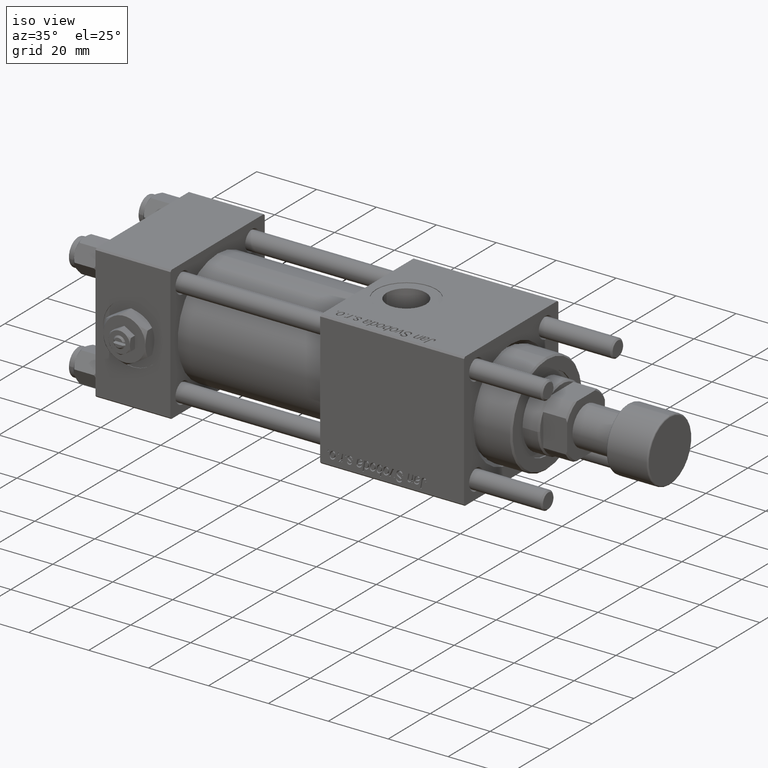
[diagram: clean part render]
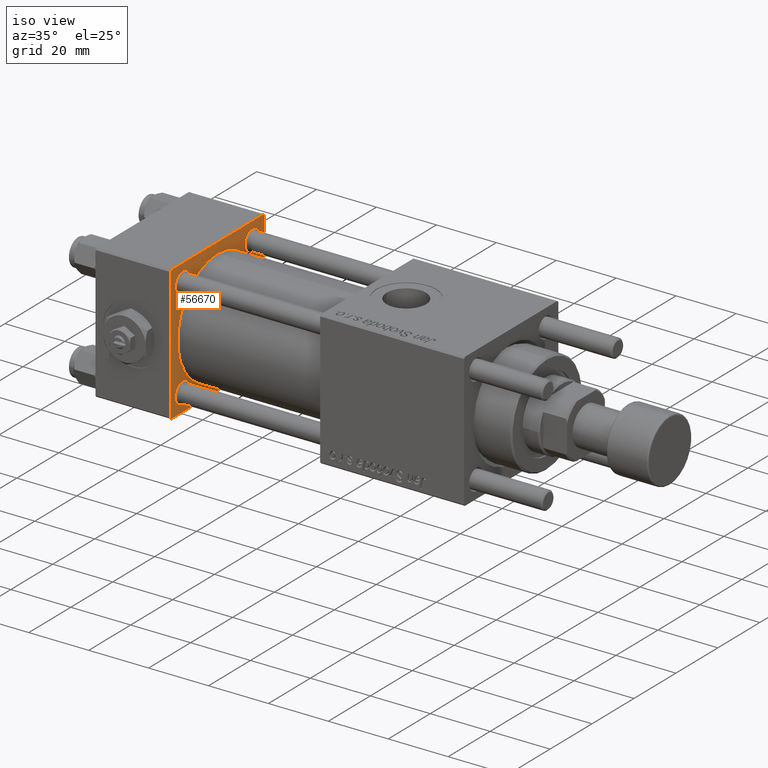
[diagram: same view with one face highlighted and labeled with its STEP entity id]
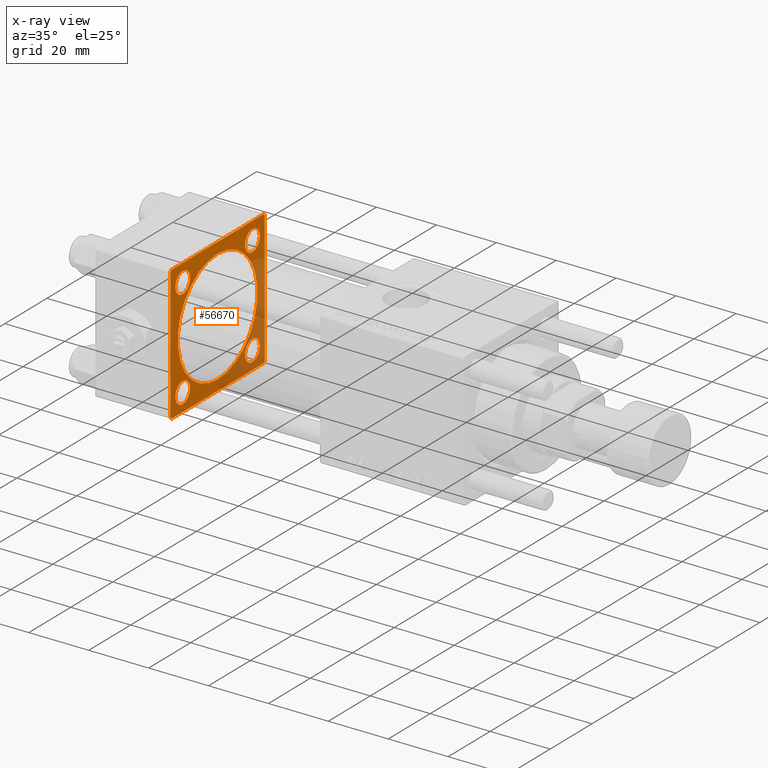
[diagram: x-ray of the same camera — body ghosted, the highlighted face saturated]
A machine part, iso view. The second image highlights one B-rep face of the part: STEP entity #56670.
The next image is the same camera in x-ray: the body ghosted, the highlighted face saturated — about 31% of this face is hidden behind the body in this view.
In plain terms, the highlighted planar face has unit normal (-1, 0, 0).
Its self-contained STEP definition (entity closure, byte-faithful):
#260 = CARTESIAN_POINT ( 'NONE',  ( 25.00000000000000000, 22.50000000000000000, 22.50000000000000355 ) ) ;
#271 = VECTOR ( 'NONE', #30502, 1000.000000000000000 ) ;
#599 = CIRCLE ( 'NONE', #41685, 3.499999999999989342 ) ;
#1056 = VECTOR ( 'NONE', #4162, 1000.000000000000000 ) ;
#1460 = AXIS2_PLACEMENT_3D ( 'NONE', #39047, #11819, #29504 ) ;
#1548 = AXIS2_PLACEMENT_3D ( 'NONE', #38645, #34169, #19233 ) ;
#1651 = DIRECTION ( 'NONE',  ( 0.000000000000000000, 0.000000000000000000, 1.000000000000000000 ) ) ;
#1834 = VERTEX_POINT ( 'NONE', #17742 ) ;
#2486 = CARTESIAN_POINT ( 'NONE',  ( 25.00000000000000000, 22.50000000000000000, 22.50000000000000355 ) ) ;
#2618 = DIRECTION ( 'NONE',  ( 0.000000000000000000, 0.000000000000000000, 1.000000000000000000 ) ) ;
#2651 = AXIS2_PLACEMENT_3D ( 'NONE', #58327, #49655, #35603 ) ;
#3244 = LINE ( 'NONE', #49320, #271 ) ;
#3564 = DIRECTION ( 'NONE',  ( 0.000000000000000000, 0.000000000000000000, -1.000000000000000000 ) ) ;
#4162 = DIRECTION ( 'NONE',  ( 0.000000000000000000, 0.7071067811865426878, -0.7071067811865524577 ) ) ;
#4179 = VERTEX_POINT ( 'NONE', #11169 ) ;
#5001 = DIRECTION ( 'NONE',  ( 0.000000000000000000, -0.7071067811865474617, 0.7071067811865474617 ) ) ;
#5053 = EDGE_LOOP ( 'NONE', ( #16176, #49427 ) ) ;
#5194 = PLANE ( 'NONE',  #30340 ) ;
#5451 = ORIENTED_EDGE ( 'NONE', *, *, #5685, .T. ) ;
#5685 = EDGE_CURVE ( 'NONE', #18250, #52885, #37649, .T. ) ;
#5952 = DIRECTION ( 'NONE',  ( 0.000000000000000000, -1.000000000000000000, -7.709882115452476934E-17 ) ) ;
#9017 = CARTESIAN_POINT ( 'NONE',  ( 25.00000000000000000, 22.50000000000000000, -21.99999999999998224 ) ) ;
#9364 = CIRCLE ( 'NONE', #2651, 3.500000000000003109 ) ;
#10172 = CIRCLE ( 'NONE', #13957, 3.499999999999992895 ) ;
#10828 = EDGE_LOOP ( 'NONE', ( #57590, #41473 ) ) ;
#11169 = CARTESIAN_POINT ( 'NONE',  ( 25.00000000000000000, 16.59999999999999787, -13.10000000000000142 ) ) ;
#11778 = LINE ( 'NONE', #2486, #35198 ) ;
#11819 = DIRECTION ( 'NONE',  ( 1.000000000000000000, -0.000000000000000000, 0.000000000000000000 ) ) ;
#13052 = CARTESIAN_POINT ( 'NONE',  ( 25.00000000000000000, -16.59999999999999076, -16.60000000000000853 ) ) ;
#13174 = CARTESIAN_POINT ( 'NONE',  ( 25.00000000000000000, -2.602085213965210642E-15, 19.00000000000000000 ) ) ;
#13351 = CARTESIAN_POINT ( 'NONE',  ( 25.00000000000000000, -22.50000000000000000, 22.00000000000000000 ) ) ;
#13957 = AXIS2_PLACEMENT_3D ( 'NONE', #24485, #52299, #15210 ) ;
#14176 = FACE_BOUND ( 'NONE', #46350, .T. ) ;
#14196 = VERTEX_POINT ( 'NONE', #23274 ) ;
#15131 = CARTESIAN_POINT ( 'NONE',  ( 25.00000000000000000, -16.59999999999999076, -16.60000000000000853 ) ) ;
#15210 = DIRECTION ( 'NONE',  ( 0.000000000000000000, 0.000000000000000000, 1.000000000000000000 ) ) ;
#15541 = ORIENTED_EDGE ( 'NONE', *, *, #34511, .T. ) ;
#15854 = CARTESIAN_POINT ( 'NONE',  ( 25.00000000000000000, -21.99999999999997868, 22.50000000000000000 ) ) ;
#15871 = EDGE_CURVE ( 'NONE', #17873, #55108, #10172, .T. ) ;
#16176 = ORIENTED_EDGE ( 'NONE', *, *, #19743, .T. ) ;
#16643 = CARTESIAN_POINT ( 'NONE',  ( 25.00000000000000000, -21.99999999999997158, -22.50000000000000711 ) ) ;
#16997 = ORIENTED_EDGE ( 'NONE', *, *, #33852, .F. ) ;
#17742 = CARTESIAN_POINT ( 'NONE',  ( 25.00000000000000000, 16.59999999999999787, -20.10000000000000853 ) ) ;
#17779 = FACE_BOUND ( 'NONE', #43561, .T. ) ;
#17873 = VERTEX_POINT ( 'NONE', #35054 ) ;
#18080 = FACE_BOUND ( 'NONE', #10828, .T. ) ;
#18250 = VERTEX_POINT ( 'NONE', #19689 ) ;
#18723 = LINE ( 'NONE', #13351, #27403 ) ;
#19080 = CARTESIAN_POINT ( 'NONE',  ( 25.00000000000000000, 21.99999999999999289, 22.50000000000000355 ) ) ;
#19168 = CARTESIAN_POINT ( 'NONE',  ( 25.00000000000000000, -16.59999999999999076, 20.10000000000000142 ) ) ;
#19195 = ORIENTED_EDGE ( 'NONE', *, *, #40228, .F. ) ;
#19233 = DIRECTION ( 'NONE',  ( 0.000000000000000000, 0.000000000000000000, 1.000000000000000000 ) ) ;
#19689 = CARTESIAN_POINT ( 'NONE',  ( 25.00000000000000000, 21.99999999999999289, 22.50000000000000355 ) ) ;
#19743 = EDGE_CURVE ( 'NONE', #1834, #4179, #28475, .T. ) ;
#20507 = CARTESIAN_POINT ( 'NONE',  ( 25.00000000000000000, -16.59999999999999076, 16.60000000000000853 ) ) ;
#21166 = DIRECTION ( 'NONE',  ( 1.000000000000000000, -0.000000000000000000, 0.000000000000000000 ) ) ;
#21361 = CARTESIAN_POINT ( 'NONE',  ( 25.00000000000000000, -16.59999999999999076, -20.09999999999999787 ) ) ;
#21804 = EDGE_CURVE ( 'NONE', #49121, #42596, #41837, .T. ) ;
#22036 = CIRCLE ( 'NONE', #34469, 3.499999999999992895 ) ;
#22300 = VERTEX_POINT ( 'NONE', #13174 ) ;
#22648 = CARTESIAN_POINT ( 'NONE',  ( 25.00000000000000000, 16.59999999999999787, 13.10000000000000142 ) ) ;
#22735 = ORIENTED_EDGE ( 'NONE', *, *, #46585, .T. ) ;
#23274 = CARTESIAN_POINT ( 'NONE',  ( 25.00000000000000000, 16.59999999999999787, 20.10000000000000853 ) ) ;
#23312 = LINE ( 'NONE', #35885, #1056 ) ;
#23409 = CARTESIAN_POINT ( 'NONE',  ( 25.00000000000000000, -2.752562955852396712E-16, -19.00000000000000000 ) ) ;
#23961 = VECTOR ( 'NONE', #31475, 1000.000000000000000 ) ;
#24401 = DIRECTION ( 'NONE',  ( -1.000000000000000000, 0.000000000000000000, -0.000000000000000000 ) ) ;
#24485 = CARTESIAN_POINT ( 'NONE',  ( 25.00000000000000000, -16.59999999999999076, 16.60000000000000853 ) ) ;
#24541 = VECTOR ( 'NONE', #5952, 1000.000000000000000 ) ;
#24598 = VERTEX_POINT ( 'NONE', #39277 ) ;
#25088 = CARTESIAN_POINT ( 'NONE',  ( 25.00000000000000000, 16.59999999999999787, 16.60000000000000497 ) ) ;
#25771 = VERTEX_POINT ( 'NONE', #36201 ) ;
#26324 = LINE ( 'NONE', #44543, #38256 ) ;
#26836 = AXIS2_PLACEMENT_3D ( 'NONE', #25088, #34635, #2618 ) ;
#27403 = VECTOR ( 'NONE', #36660, 999.9999999999998863 ) ;
#28120 = ORIENTED_EDGE ( 'NONE', *, *, #30344, .T. ) ;
#28226 = CIRCLE ( 'NONE', #1460, 19.00000000000000000 ) ;
#28475 = CIRCLE ( 'NONE', #43719, 3.500000000000003109 ) ;
#29211 = DIRECTION ( 'NONE',  ( -1.000000000000000000, 0.000000000000000000, -0.000000000000000000 ) ) ;
#29362 = CARTESIAN_POINT ( 'NONE',  ( 25.00000000000000000, -22.50000000000000000, 22.00000000000000000 ) ) ;
#29435 = VERTEX_POINT ( 'NONE', #16643 ) ;
#29504 = DIRECTION ( 'NONE',  ( 0.000000000000000000, 0.000000000000000000, 1.000000000000000000 ) ) ;
#29675 = CARTESIAN_POINT ( 'NONE',  ( 25.00000000000000000, 22.50000000000000000, -21.99999999999996803 ) ) ;
#29836 = ORIENTED_EDGE ( 'NONE', *, *, #51865, .T. ) ;
#30340 = AXIS2_PLACEMENT_3D ( 'NONE', #45875, #58449, #49487 ) ;
#30344 = EDGE_CURVE ( 'NONE', #55108, #17873, #22036, .T. ) ;
#30502 = DIRECTION ( 'NONE',  ( 0.000000000000000000, -1.000000000000000000, -2.312964634635742957E-16 ) ) ;
#30744 = DIRECTION ( 'NONE',  ( 0.000000000000000000, 0.000000000000000000, 1.000000000000000000 ) ) ;
#31303 = DIRECTION ( 'NONE',  ( 0.000000000000000000, 0.000000000000000000, 1.000000000000000000 ) ) ;
#31475 = DIRECTION ( 'NONE',  ( -0.000000000000000000, 0.7071067811865426878, 0.7071067811865524577 ) ) ;
#31769 = LINE ( 'NONE', #9017, #23961 ) ;
#33075 = ORIENTED_EDGE ( 'NONE', *, *, #58884, .F. ) ;
#33454 = EDGE_CURVE ( 'NONE', #24598, #40066, #31769, .T. ) ;
#33600 = EDGE_CURVE ( 'NONE', #41843, #57741, #26324, .T. ) ;
#33733 = EDGE_LOOP ( 'NONE', ( #19195, #52706, #33075, #22735, #5451, #58404, #49808, #15541 ) ) ;
#33852 = EDGE_CURVE ( 'NONE', #22300, #46094, #52611, .T. ) ;
#34001 = EDGE_CURVE ( 'NONE', #57459, #14196, #44004, .T. ) ;
#34169 = DIRECTION ( 'NONE',  ( -1.000000000000000000, 0.000000000000000000, -0.000000000000000000 ) ) ;
#34469 = AXIS2_PLACEMENT_3D ( 'NONE', #20507, #29211, #53091 ) ;
#34511 = EDGE_CURVE ( 'NONE', #57741, #29435, #23312, .T. ) ;
#34635 = DIRECTION ( 'NONE',  ( -1.000000000000000000, 0.000000000000000000, -0.000000000000000000 ) ) ;
#34678 = EDGE_LOOP ( 'NONE', ( #35771, #29836 ) ) ;
#35054 = CARTESIAN_POINT ( 'NONE',  ( 25.00000000000000000, -16.59999999999999076, 13.10000000000001386 ) ) ;
#35198 = VECTOR ( 'NONE', #56943, 1000.000000000000000 ) ;
#35603 = DIRECTION ( 'NONE',  ( 0.000000000000000000, 0.000000000000000000, 1.000000000000000000 ) ) ;
#35771 = ORIENTED_EDGE ( 'NONE', *, *, #34001, .T. ) ;
#35885 = CARTESIAN_POINT ( 'NONE',  ( 25.00000000000000000, -21.99999999999998579, -22.50000000000000711 ) ) ;
#36201 = CARTESIAN_POINT ( 'NONE',  ( 25.00000000000000000, 22.50000000000000000, 21.99999999999999645 ) ) ;
#36318 = FACE_BOUND ( 'NONE', #5053, .T. ) ;
#36660 = DIRECTION ( 'NONE',  ( -0.000000000000000000, -0.7071067811865525687, -0.7071067811865425767 ) ) ;
#37649 = LINE ( 'NONE', #260, #24541 ) ;
#38256 = VECTOR ( 'NONE', #3564, 1000.000000000000000 ) ;
#38645 = CARTESIAN_POINT ( 'NONE',  ( 25.00000000000000000, 16.59999999999999787, 16.60000000000000497 ) ) ;
#39047 = CARTESIAN_POINT ( 'NONE',  ( 25.00000000000000000, -2.602085213965210642E-15, 0.000000000000000000 ) ) ;
#39277 = CARTESIAN_POINT ( 'NONE',  ( 25.00000000000000000, 21.99999999999999289, -22.49999999999999645 ) ) ;
#40066 = VERTEX_POINT ( 'NONE', #29675 ) ;
#40228 = EDGE_CURVE ( 'NONE', #24598, #29435, #3244, .T. ) ;
#40414 = DIRECTION ( 'NONE',  ( -1.000000000000000000, 0.000000000000000000, -0.000000000000000000 ) ) ;
#41473 = ORIENTED_EDGE ( 'NONE', *, *, #49017, .T. ) ;
#41685 = AXIS2_PLACEMENT_3D ( 'NONE', #15131, #24401, #1651 ) ;
#41837 = CIRCLE ( 'NONE', #47576, 3.499999999999989342 ) ;
#41843 = VERTEX_POINT ( 'NONE', #29362 ) ;
#42596 = VERTEX_POINT ( 'NONE', #53396 ) ;
#43561 = EDGE_LOOP ( 'NONE', ( #16997, #48993 ) ) ;
#43719 = AXIS2_PLACEMENT_3D ( 'NONE', #55060, #40414, #54183 ) ;
#44004 = CIRCLE ( 'NONE', #26836, 3.500000000000003109 ) ;
#44484 = CIRCLE ( 'NONE', #1548, 3.500000000000003109 ) ;
#44543 = CARTESIAN_POINT ( 'NONE',  ( 25.00000000000000000, -22.50000000000000000, 22.50000000000000000 ) ) ;
#45760 = EDGE_CURVE ( 'NONE', #46094, #22300, #28226, .T. ) ;
#45875 = CARTESIAN_POINT ( 'NONE',  ( 25.00000000000000000, 0.000000000000000000, 0.000000000000000000 ) ) ;
#46094 = VERTEX_POINT ( 'NONE', #23409 ) ;
#46350 = EDGE_LOOP ( 'NONE', ( #49137, #28120 ) ) ;
#46585 = EDGE_CURVE ( 'NONE', #25771, #18250, #54664, .T. ) ;
#47576 = AXIS2_PLACEMENT_3D ( 'NONE', #13052, #53437, #31303 ) ;
#48096 = CARTESIAN_POINT ( 'NONE',  ( 25.00000000000000000, -2.602085213965210642E-15, 0.000000000000000000 ) ) ;
#48993 = ORIENTED_EDGE ( 'NONE', *, *, #45760, .F. ) ;
#49017 = EDGE_CURVE ( 'NONE', #42596, #49121, #599, .T. ) ;
#49121 = VERTEX_POINT ( 'NONE', #21361 ) ;
#49137 = ORIENTED_EDGE ( 'NONE', *, *, #15871, .T. ) ;
#49320 = CARTESIAN_POINT ( 'NONE',  ( 25.00000000000000000, 22.50000000000000000, -22.49999999999999645 ) ) ;
#49427 = ORIENTED_EDGE ( 'NONE', *, *, #58183, .T. ) ;
#49487 = DIRECTION ( 'NONE',  ( -0.000000000000000000, 0.000000000000000000, 1.000000000000000000 ) ) ;
#49655 = DIRECTION ( 'NONE',  ( -1.000000000000000000, 0.000000000000000000, -0.000000000000000000 ) ) ;
#49808 = ORIENTED_EDGE ( 'NONE', *, *, #33600, .T. ) ;
#51865 = EDGE_CURVE ( 'NONE', #14196, #57459, #44484, .T. ) ;
#52299 = DIRECTION ( 'NONE',  ( -1.000000000000000000, 0.000000000000000000, -0.000000000000000000 ) ) ;
#52611 = CIRCLE ( 'NONE', #55465, 19.00000000000000000 ) ;
#52706 = ORIENTED_EDGE ( 'NONE', *, *, #33454, .T. ) ;
#52885 = VERTEX_POINT ( 'NONE', #15854 ) ;
#53091 = DIRECTION ( 'NONE',  ( 0.000000000000000000, 0.000000000000000000, 1.000000000000000000 ) ) ;
#53396 = CARTESIAN_POINT ( 'NONE',  ( 25.00000000000000000, -16.59999999999999076, -13.10000000000001741 ) ) ;
#53437 = DIRECTION ( 'NONE',  ( -1.000000000000000000, 0.000000000000000000, -0.000000000000000000 ) ) ;
#53482 = EDGE_CURVE ( 'NONE', #52885, #41843, #18723, .T. ) ;
#53969 = FACE_OUTER_BOUND ( 'NONE', #33733, .T. ) ;
#54183 = DIRECTION ( 'NONE',  ( 0.000000000000000000, 0.000000000000000000, 1.000000000000000000 ) ) ;
#54563 = FACE_BOUND ( 'NONE', #34678, .T. ) ;
#54664 = LINE ( 'NONE', #19080, #54962 ) ;
#54962 = VECTOR ( 'NONE', #5001, 1000.000000000000114 ) ;
#55060 = CARTESIAN_POINT ( 'NONE',  ( 25.00000000000000000, 16.59999999999999787, -16.60000000000000497 ) ) ;
#55108 = VERTEX_POINT ( 'NONE', #19168 ) ;
#55465 = AXIS2_PLACEMENT_3D ( 'NONE', #48096, #21166, #30744 ) ;
#56670 = ADVANCED_FACE ( 'NONE', ( #18080, #36318, #14176, #54563, #17779, #53969 ), #5194, .F. ) ;
#56943 = DIRECTION ( 'NONE',  ( 0.000000000000000000, 0.000000000000000000, -1.000000000000000000 ) ) ;
#57459 = VERTEX_POINT ( 'NONE', #22648 ) ;
#57590 = ORIENTED_EDGE ( 'NONE', *, *, #21804, .T. ) ;
#57741 = VERTEX_POINT ( 'NONE', #57802 ) ;
#57802 = CARTESIAN_POINT ( 'NONE',  ( 25.00000000000000000, -22.50000000000000000, -21.99999999999997158 ) ) ;
#58183 = EDGE_CURVE ( 'NONE', #4179, #1834, #9364, .T. ) ;
#58327 = CARTESIAN_POINT ( 'NONE',  ( 25.00000000000000000, 16.59999999999999787, -16.60000000000000497 ) ) ;
#58404 = ORIENTED_EDGE ( 'NONE', *, *, #53482, .T. ) ;
#58449 = DIRECTION ( 'NONE',  ( -1.000000000000000000, 0.000000000000000000, -0.000000000000000000 ) ) ;
#58884 = EDGE_CURVE ( 'NONE', #25771, #40066, #11778, .T. ) ;